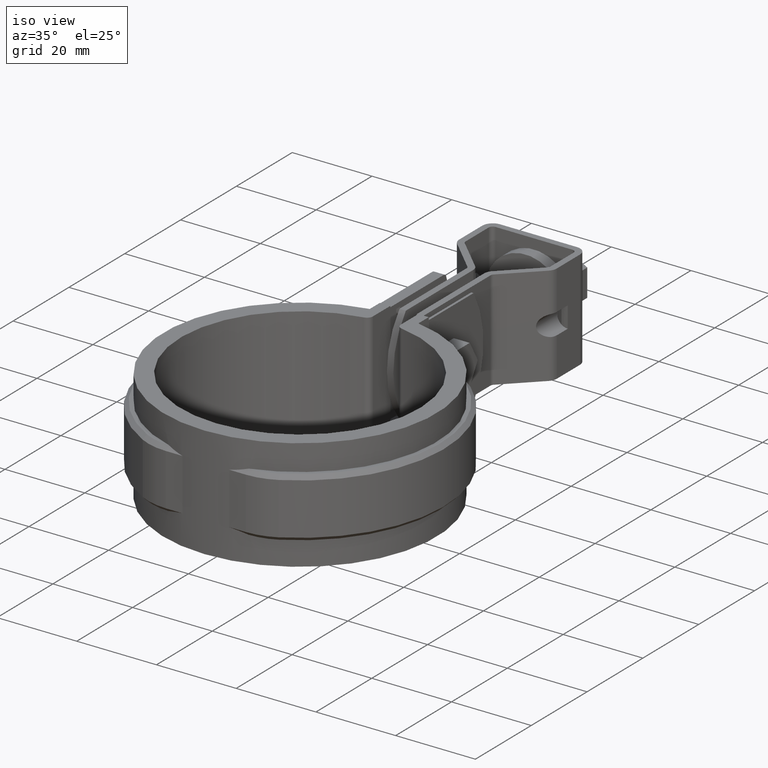
[diagram: clean part render]
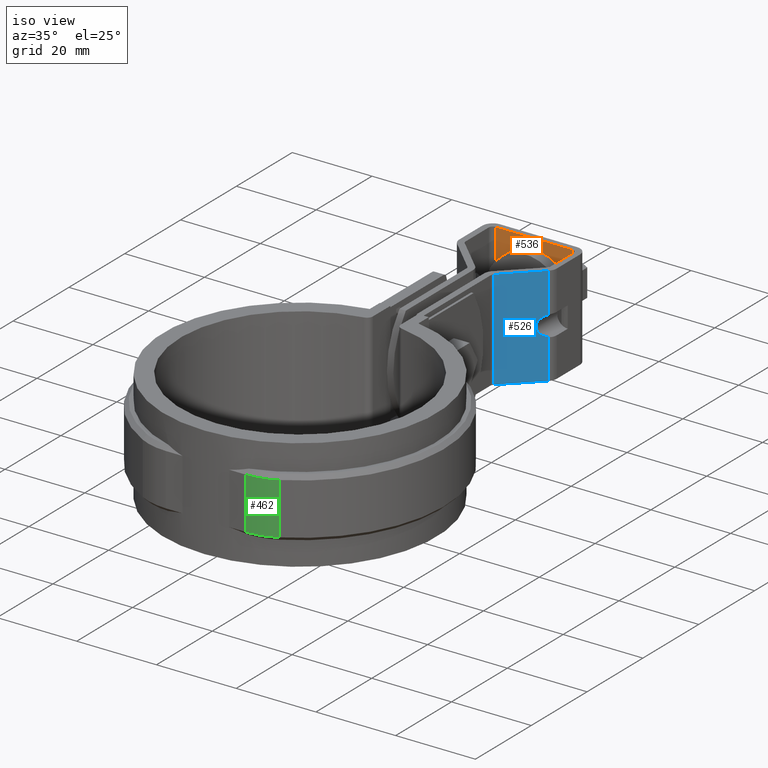
[diagram: same view with three faces highlighted in distinct colors, each labeled with its STEP entity id]
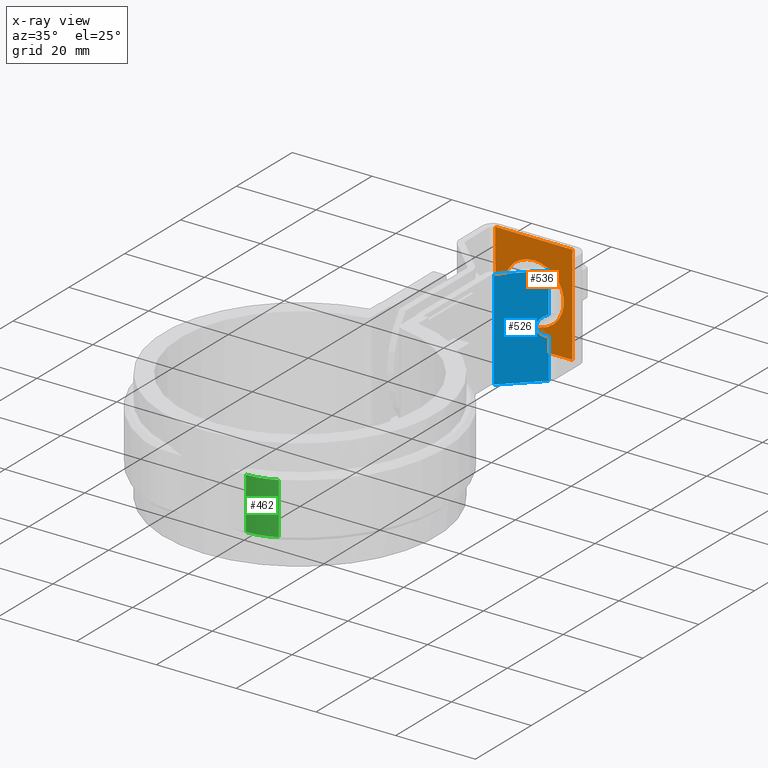
[diagram: x-ray of the same camera — body ghosted, the three highlighted faces saturated]
A machine part, iso view with three faces highlighted in distinct colors.
The next image is the same camera in x-ray (body ghosted, the three faces saturated) — at least one of them is partly hidden behind the body in this view.
Their STEP definitions:

[orange] entity #536 — the highlighted planar face has unit normal (0, -1, 0).
#536 = ADVANCED_FACE( '', ( #1072, #1073 ), #1074, .T. );
#1072 = FACE_OUTER_BOUND( '', #2327, .T. );
#1073 = FACE_BOUND( '', #2328, .T. );
#1074 = PLANE( '', #2329 );
#2327 = EDGE_LOOP( '', ( #5416, #5417, #5418, #5419 ) );
#2328 = EDGE_LOOP( '', ( #5420 ) );
#2329 = AXIS2_PLACEMENT_3D( '', #5421, #5422, #5423 );
#5416 = ORIENTED_EDGE( '', *, *, #7264, .F. );
#5417 = ORIENTED_EDGE( '', *, *, #7184, .T. );
#5418 = ORIENTED_EDGE( '', *, *, #7308, .T. );
#5419 = ORIENTED_EDGE( '', *, *, #7309, .F. );
#5420 = ORIENTED_EDGE( '', *, *, #7305, .T. );
#5421 = CARTESIAN_POINT( '', ( 9.64999999995571, 83.8015111822743, -8.85912176951109E-009 ) );
#5422 = DIRECTION( '', ( 8.95987727456561E-014, -1.00000000000000, 6.36784791563427E-011 ) );
#5423 = DIRECTION( '', ( -1.00000000000000, -8.95987727456561E-014, 8.03735403365917E-040 ) );
#7184 = EDGE_CURVE( '', #8370, #8368, #8371, .F. );
#7264 = EDGE_CURVE( '', #8370, #8511, #8515, .T. );
#7305 = EDGE_CURVE( '', #8571, #8571, #8572, .F. );
#7308 = EDGE_CURVE( '', #8368, #8575, #8577, .T. );
#7309 = EDGE_CURVE( '', #8511, #8575, #8578, .T. );
#8368 = VERTEX_POINT( '', #12001 );
#8370 = VERTEX_POINT( '', #12003 );
#8371 = LINE( '', #12004, #12005 );
#8511 = VERTEX_POINT( '', #12237 );
#8515 = LINE( '', #12242, #12243 );
#8571 = VERTEX_POINT( '', #12330 );
#8572 = CIRCLE( '', #12331, 7.50000000000000 );
#8575 = VERTEX_POINT( '', #12334 );
#8577 = LINE( '', #12336, #12337 );
#8578 = LINE( '', #12338, #12339 );
#12001 = CARTESIAN_POINT( '', ( -9.65000000004431, 83.8015111822726, -8.85152393048650E-009 ) );
#12003 = CARTESIAN_POINT( '', ( 9.64999999995569, 83.8015111822745, -8.85912400186912E-009 ) );
#12004 = CARTESIAN_POINT( '', ( 9.64999999995571, 83.8015111822743, -8.85912400186911E-009 ) );
#12005 = VECTOR( '', #13873, 1000.00000000000 );
#12237 = CARTESIAN_POINT( '', ( 9.64999999994584, 83.8015111806825, -25.0000000088592 ) );
#12242 = CARTESIAN_POINT( '', ( 9.64999999995569, 83.8015111822747, -8.85909401393548E-009 ) );
#12243 = VECTOR( '', #14005, 1000.00000000000 );
#12330 = CARTESIAN_POINT( '', ( -4.92222184301023E-011, 83.8015111809999, -20.0000000088553 ) );
#12331 = AXIS2_PLACEMENT_3D( '', #14064, #14065, #14066 );
#12334 = CARTESIAN_POINT( '', ( -9.65000000005415, 83.8015111806806, -25.0000000088516 ) );
#12336 = CARTESIAN_POINT( '', ( -9.65000000004431, 83.8015111822726, -8.85151674179241E-009 ) );
#12337 = VECTOR( '', #14073, 1000.00000000000 );
#12338 = CARTESIAN_POINT( '', ( -9.65000000005415, 83.8015111806806, -25.0000000088516 ) );
#12339 = VECTOR( '', #14074, 1000.00000000000 );
#13873 = DIRECTION( '', ( 1.00000000000000, 8.95987727205804E-014, -3.93786082000202E-013 ) );
#14005 = DIRECTION( '', ( -3.93786081994497E-013, -6.36784791563427E-011, -1.00000000000000 ) );
#14064 = CARTESIAN_POINT( '', ( -4.92222184301023E-011, 83.8015111814775, -12.5000000088553 ) );
#14065 = DIRECTION( '', ( 8.95987727456561E-014, -1.00000000000000, 6.36784791563427E-011 ) );
#14066 = DIRECTION( '', ( 0.000000000000000, -6.36784791563427E-011, -1.00000000000000 ) );
#14073 = DIRECTION( '', ( -3.93786081994497E-013, -6.36784791563427E-011, -1.00000000000000 ) );
#14074 = DIRECTION( '', ( -1.00000000000000, -8.95987727205804E-014, 3.93786082000202E-013 ) );

[blue] entity #526 — the highlighted planar face has unit normal (0.6983, -0.7158, 0).
#526 = ADVANCED_FACE( '', ( #1050 ), #1051, .T. );
#1050 = FACE_OUTER_BOUND( '', #2305, .T. );
#1051 = PLANE( '', #2306 );
#2305 = EDGE_LOOP( '', ( #5333, #5334, #5335, #5336, #5337, #5338 ) );
#2306 = AXIS2_PLACEMENT_3D( '', #5339, #5340, #5341 );
#5333 = ORIENTED_EDGE( '', *, *, #7295, .T. );
#5334 = ORIENTED_EDGE( '', *, *, #7293, .F. );
#5335 = ORIENTED_EDGE( '', *, *, #7244, .T. );
#5336 = ORIENTED_EDGE( '', *, *, #7290, .F. );
#5337 = ORIENTED_EDGE( '', *, *, #7194, .F. );
#5338 = ORIENTED_EDGE( '', *, *, #7296, .F. );
#5339 = CARTESIAN_POINT( '', ( 3.90167616442685, 65.2568053779025, -7.67592933659245E-009 ) );
#5340 = DIRECTION( '', ( 0.698323835530563, -0.715781964518444, 4.53049167009169E-011 ) );
#5341 = DIRECTION( '', ( -9.02562403178986E-027, -6.32942976306991E-011, -1.00000000000000 ) );
#7194 = EDGE_CURVE( '', #8388, #8390, #8391, .F. );
#7244 = EDGE_CURVE( '', #8479, #8480, #8481, .F. );
#7290 = EDGE_CURVE( '', #8390, #8480, #8552, .T. );
#7293 = EDGE_CURVE( '', #8479, #8556, #8557, .T. );
#7295 = EDGE_CURVE( '', #8559, #8556, #8560, .T. );
#7296 = EDGE_CURVE( '', #8559, #8388, #8561, .T. );
#8388 = VERTEX_POINT( '', #12027 );
#8390 = VERTEX_POINT( '', #12029 );
#8391 = LINE( '', #12030, #12031 );
#8479 = VERTEX_POINT( '', #12181 );
#8480 = VERTEX_POINT( '', #12182 );
#8481 = ELLIPSE( '', #12183, 3.70224472166266, 2.64999999999997 );
#8552 = LINE( '', #12299, #12300 );
#8556 = VERTEX_POINT( '', #12305 );
#8557 = LINE( '', #12306, #12307 );
#8559 = VERTEX_POINT( '', #12309 );
#8560 = LINE( '', #12310, #12311 );
#8561 = LINE( '', #12312, #12313 );
#12027 = CARTESIAN_POINT( '', ( 3.30167616442690, 64.6714395513129, -7.63845025268716E-009 ) );
#12029 = CARTESIAN_POINT( '', ( 11.4656419723360, 72.6362838736408, -8.14885428195907E-009 ) );
#12030 = CARTESIAN_POINT( '', ( 5.72823783051220, 67.0388166770444, -7.79015677385446E-009 ) );
#12031 = VECTOR( '', #13891, 1000.00000000000 );
#12181 = CARTESIAN_POINT( '', ( 11.4656419723301, 72.6362838726837, -15.0312610544471 ) );
#12182 = CARTESIAN_POINT( '', ( 11.4656419723320, 72.6362838730061, -9.96873896185059 ) );
#12183 = AXIS2_PLACEMENT_3D( '', #13969, #13970, #13971 );
#12299 = CARTESIAN_POINT( '', ( 11.4656419723360, 72.6362838736409, -8.14882883393153E-009 ) );
#12300 = VECTOR( '', #14043, 1000.00000000000 );
#12305 = CARTESIAN_POINT( '', ( 11.4656419723262, 72.6362838720489, -25.0000000081489 ) );
#12306 = CARTESIAN_POINT( '', ( 11.4656419723360, 72.6362838736409, -8.14882883393153E-009 ) );
#12307 = VECTOR( '', #14048, 1000.00000000000 );
#12309 = CARTESIAN_POINT( '', ( 3.30167616441706, 64.6714395497209, -25.0000000076385 ) );
#12310 = CARTESIAN_POINT( '', ( 3.90167616441701, 65.2568053763105, -25.0000000076760 ) );
#12311 = VECTOR( '', #14052, 1000.00000000000 );
#12312 = CARTESIAN_POINT( '', ( 3.30167616442690, 64.6714395513129, -7.63843155393573E-009 ) );
#12313 = VECTOR( '', #14053, 1000.00000000000 );
#13891 = DIRECTION( '', ( -0.715781964518444, -0.698323835530563, 4.47500647805803E-011 ) );
#13969 = CARTESIAN_POINT( '', ( 12.2499999999517, 73.4015111814788, -12.5000000081979 ) );
#13970 = DIRECTION( '', ( 0.698323835530563, -0.715781964518444, 4.53049167009169E-011 ) );
#13971 = DIRECTION( '', ( 0.715781964518444, 0.698323835530563, -4.47500647805802E-011 ) );
#14043 = DIRECTION( '', ( -3.93786081994497E-013, -6.36784791563427E-011, -1.00000000000000 ) );
#14048 = DIRECTION( '', ( -3.93786081994497E-013, -6.36784791563427E-011, -1.00000000000000 ) );
#14052 = DIRECTION( '', ( 0.715781964518444, 0.698323835530563, -4.47500647805803E-011 ) );
#14053 = DIRECTION( '', ( 3.93724851676806E-013, 6.36784194194502E-011, 1.00000000000000 ) );

[green] entity #462 — the highlighted cylindrical surface (partial cylindrical patch) has radius 15 mm, axis along (0, 0, -1).
#462 = ADVANCED_FACE( '', ( #917 ), #918, .T. );
#917 = FACE_OUTER_BOUND( '', #2042, .T. );
#918 = CYLINDRICAL_SURFACE( '', #2043, 15.0000000000000 );
#2042 = EDGE_LOOP( '', ( #4766, #4767, #4768, #4769 ) );
#2043 = AXIS2_PLACEMENT_3D( '', #4770, #4771, #4772 );
#4766 = ORIENTED_EDGE( '', *, *, #7139, .T. );
#4767 = ORIENTED_EDGE( '', *, *, #7140, .T. );
#4768 = ORIENTED_EDGE( '', *, *, #7141, .F. );
#4769 = ORIENTED_EDGE( '', *, *, #7142, .T. );
#4770 = CARTESIAN_POINT( '', ( 10.0156042753296, -18.7360000000000, -20.0000000000000 ) );
#4771 = DIRECTION( '', ( 0.000000000000000, 0.000000000000000, -1.00000000000000 ) );
#4772 = DIRECTION( '', ( 0.171773235086843, 0.985136516279749, 0.000000000000000 ) );
#7139 = EDGE_CURVE( '', #8304, #8114, #8305, .T. );
#7140 = EDGE_CURVE( '', #8114, #8306, #8307, .T. );
#7141 = EDGE_CURVE( '', #8308, #8306, #8309, .T. );
#7142 = EDGE_CURVE( '', #8308, #8304, #8310, .T. );
#8114 = VERTEX_POINT( '', #10934 );
#8304 = VERTEX_POINT( '', #11774 );
#8305 = LINE( '', #11775, #11776 );
#8306 = VERTEX_POINT( '', #11777 );
#8307 = CIRCLE( '', #11778, 15.0000000000000 );
#8308 = VERTEX_POINT( '', #11779 );
#8309 = LINE( '', #11780, #11781 );
#8310 = CIRCLE( '', #11782, 15.0000000000000 );
#10934 = CARTESIAN_POINT( '', ( 17.0871064701963, -31.9645243586726, -6.00000000000000 ) );
#11774 = CARTESIAN_POINT( '', ( 17.0871064701963, -31.9645243586726, -19.0000000000000 ) );
#11775 = CARTESIAN_POINT( '', ( 17.0871064701963, -31.9645243586726, -20.0000000000000 ) );
#11776 = VECTOR( '', #13804, 1000.00000000000 );
#11777 = CARTESIAN_POINT( '', ( 10.0156042753296, -33.7360000000000, -6.00000000000000 ) );
#11778 = AXIS2_PLACEMENT_3D( '', #13805, #13806, #13807 );
#11779 = CARTESIAN_POINT( '', ( 10.0156042753296, -33.7360000000000, -19.0000000000000 ) );
#11780 = CARTESIAN_POINT( '', ( 10.0156042753296, -33.7360000000000, -20.0000000000000 ) );
#11781 = VECTOR( '', #13808, 1000.00000000000 );
#11782 = AXIS2_PLACEMENT_3D( '', #13809, #13810, #13811 );
#13804 = DIRECTION( '', ( 0.000000000000000, 0.000000000000000, 1.00000000000000 ) );
#13805 = CARTESIAN_POINT( '', ( 10.0156042753296, -18.7360000000000, -6.00000000000000 ) );
#13806 = DIRECTION( '', ( 0.000000000000000, 0.000000000000000, -1.00000000000000 ) );
#13807 = DIRECTION( '', ( -1.00000000000000, 0.000000000000000, 0.000000000000000 ) );
#13808 = DIRECTION( '', ( 0.000000000000000, 0.000000000000000, 1.00000000000000 ) );
#13809 = CARTESIAN_POINT( '', ( 10.0156042753296, -18.7360000000000, -19.0000000000000 ) );
#13810 = DIRECTION( '', ( 0.000000000000000, 0.000000000000000, 1.00000000000000 ) );
#13811 = DIRECTION( '', ( 1.00000000000000, 0.000000000000000, 0.000000000000000 ) );